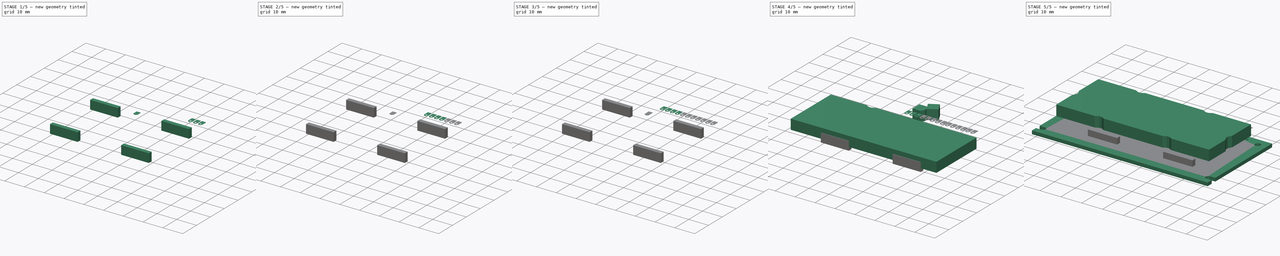
[diagram: build sequence overview — one tinted view per stage of 5, left to right]
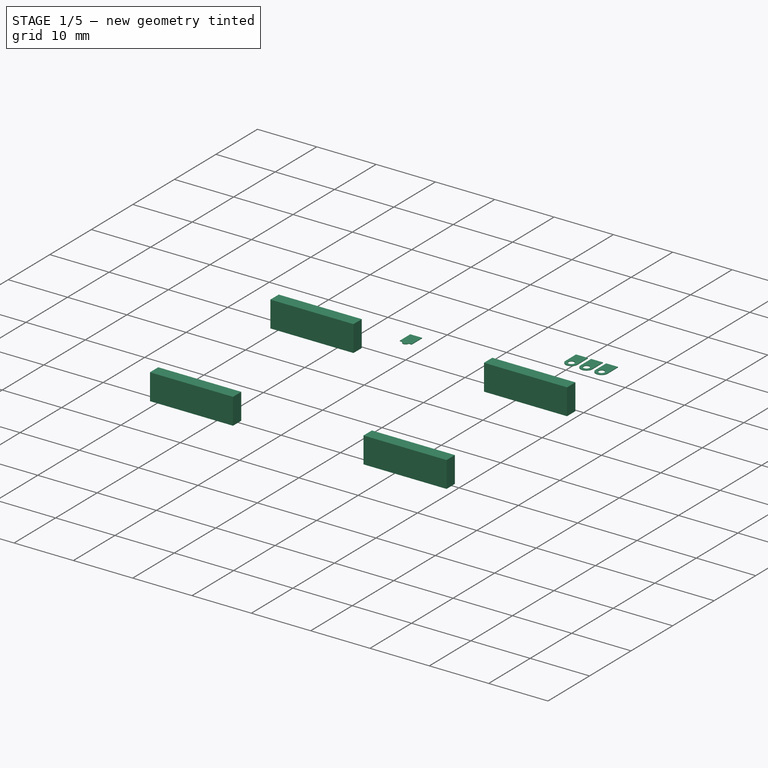
[diagram: stage 1 of 5 — iso view after this stage's code; geometry added in this stage tinted green]
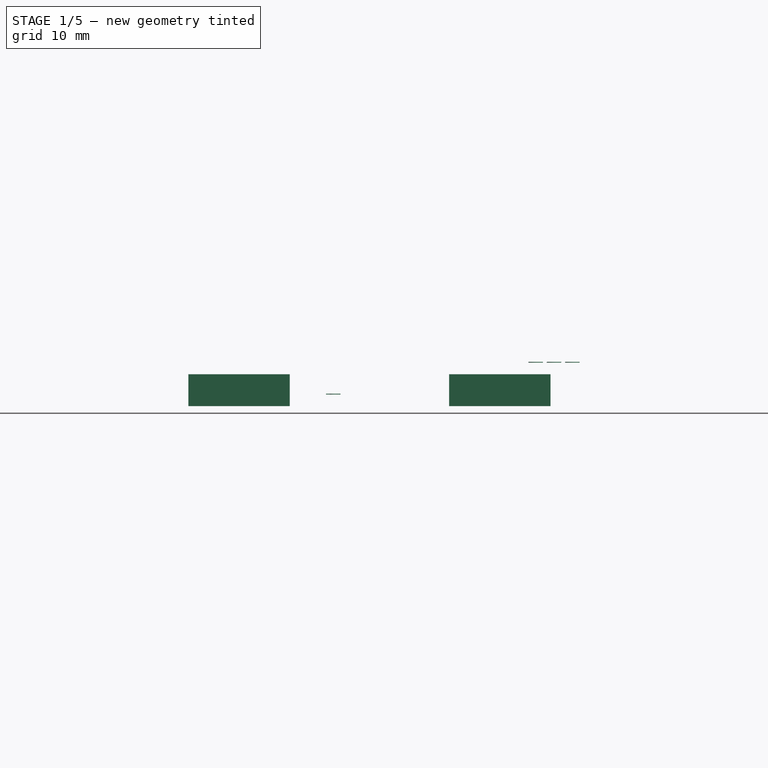
[diagram: stage 1 of 5 — front view after this stage's code; geometry added in this stage tinted green]
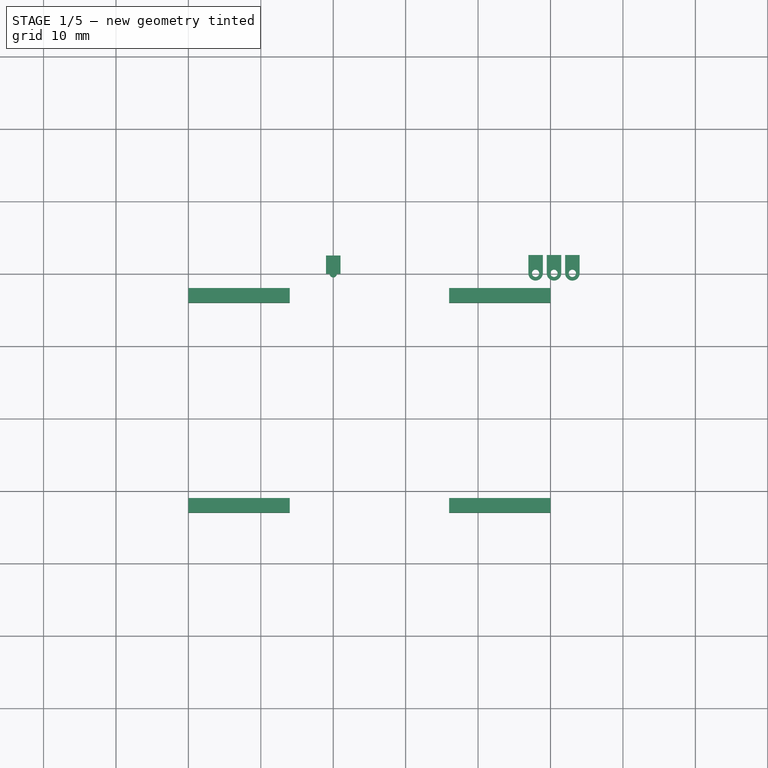
[diagram: stage 1 of 5 — top view after this stage's code; geometry added in this stage tinted green]
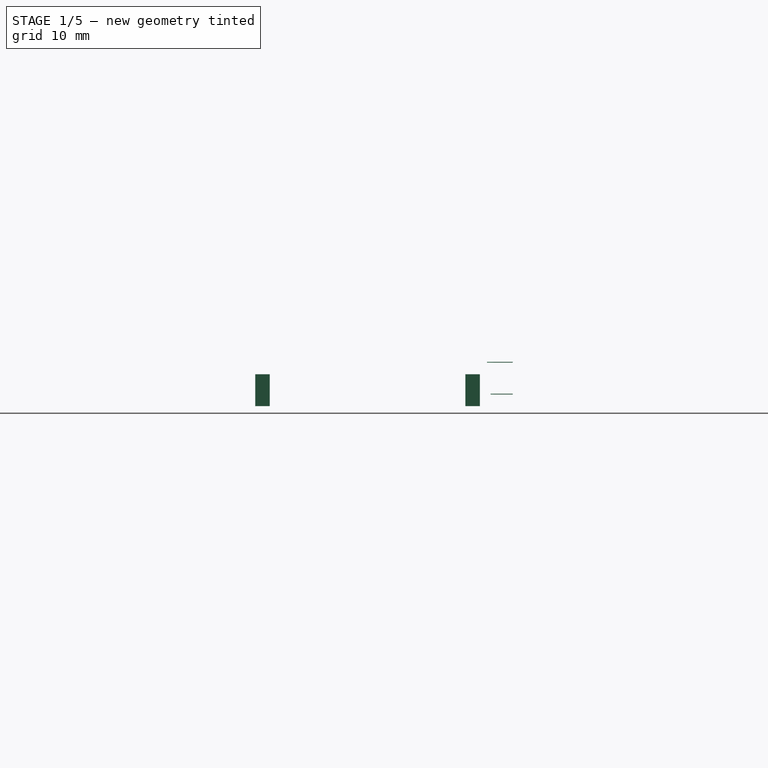
[diagram: stage 1 of 5 — right view after this stage's code; geometry added in this stage tinted green]
FCSTD DOCUMENT  (FreeCAD 0.17R11223 (Git))
Label: LM16255_6
License: All rights reserved
LicenseURL: http://en.wikipedia.org/wiki/All_rights_reserved
objects: Part::Cut×47, Part::Cylinder×42, Part::Box×39, Part::MultiFuse×14, Sketcher::SketchObject×1, PartDesign::Pad×1, PartDesign::Body×1
note: 146 computed .brp shape members not serialized (recipe doc carries the construction recipe); baked Part::Feature solids carry a one-line shape summary decoded from their .brp

FEATURE [Part::Cylinder] Cylinder031
  Angle = 360
  AttacherType = Attacher::AttachEngine3D
  Height = 0.1
  Placement = pos=(0,0,1.6) rot=(0,0,1;0rad)
  Radius = 0.5
FEATURE [Part::Box] Box031  label="Kub028"
  AttacherType = Attacher::AttachEngine3D
  Height = 0.1
  Length = 2
  Placement = pos=(-1,0,1.6) rot=(0,0,1;0rad)
  Width = 2.54
FEATURE [Part::Cylinder] Cylinder032
  Angle = 360
  AttacherType = Attacher::AttachEngine3D
  Height = 0.1
  Placement = pos=(0,0,1.6) rot=(0,0,1;0rad)
  Radius = 0.5
FEATURE [Part::Cut] Cut040
  Base = -> Box031
  Tool = -> Cylinder032
FEATURE [Part::Cylinder] Cylinder033
  Angle = 360
  AttacherType = Attacher::AttachEngine3D
  Height = 0.1
  Placement = pos=(0,0,1.6) rot=(0,0,1;0rad)
  Radius = 1
FEATURE [Part::Cylinder] Cylinder034
  Angle = 360
  AttacherType = Attacher::AttachEngine3D
  Height = 0.1
  Placement = pos=(0,0,1.6) rot=(0,0,1;0rad)
  Radius = 0.5
FEATURE [Part::Cut] Cut041
  Base = -> Cylinder033
  Tool = -> Cylinder034
FEATURE [Part::Box] Box032  label="Kub029"
  AttacherType = Attacher::AttachEngine3D
  Height = 0.1
  Length = 2
  Placement = pos=(-1,0,1.6) rot=(0,0,1;0rad)
  Width = 2.54
FEATURE [Part::Cylinder] Cylinder035
  Angle = 360
  AttacherType = Attacher::AttachEngine3D
  Height = 0.1
  Placement = pos=(0,0,1.6) rot=(0,0,1;0rad)
  Radius = 0.5
FEATURE [Part::Cut] Cut042
  Base = -> Box032
  Tool = -> Cylinder035
FEATURE [Part::MultiFuse] Fusion011  label="Pad 012"
  Placement = pos=(27.94,0,4.4) rot=(0,0,1;0rad)
  Shapes = -> [Cut041,Cut042]
FEATURE [Part::Cylinder] Cylinder036
  Angle = 360
  AttacherType = Attacher::AttachEngine3D
  Height = 0.1
  Placement = pos=(0,0,1.6) rot=(0,0,1;0rad)
  Radius = 1
FEATURE [Part::Cylinder] Cylinder037
  Angle = 360
  AttacherType = Attacher::AttachEngine3D
  Height = 0.1
  Placement = pos=(0,0,1.6) rot=(0,0,1;0rad)
  Radius = 0.5
FEATURE [Part::Cut] Cut043
  Base = -> Cylinder036
  Tool = -> Cylinder037
FEATURE [Part::Box] Box033  label="Kub030"
  AttacherType = Attacher::AttachEngine3D
  Height = 0.1
  Length = 2
  Placement = pos=(-1,0,1.6) rot=(0,0,1;0rad)
  Width = 2.54
FEATURE [Part::Cylinder] Cylinder038
  Angle = 360
  AttacherType = Attacher::AttachEngine3D
  Height = 0.1
  Placement = pos=(0,0,1.6) rot=(0,0,1;0rad)
  Radius = 0.5
FEATURE [Part::Cut] Cut044
  Base = -> Box033
  Tool = -> Cylinder038
FEATURE [Part::MultiFuse] Fusion012  label="Pad 013"
  Placement = pos=(30.48,0,4.4) rot=(0,0,1;0rad)
  Shapes = -> [Cut043,Cut044]
FEATURE [Part::Cylinder] Cylinder039
  Angle = 360
  AttacherType = Attacher::AttachEngine3D
  Height = 0.1
  Placement = pos=(0,0,1.6) rot=(0,0,1;0rad)
  Radius = 1
FEATURE [Part::Cylinder] Cylinder040
  Angle = 360
  AttacherType = Attacher::AttachEngine3D
  Height = 0.1
  Placement = pos=(0,0,1.6) rot=(0,0,1;0rad)
  Radius = 0.5
FEATURE [Part::Cut] Cut045
  Base = -> Cylinder039
  Tool = -> Cylinder040
FEATURE [Part::Box] Box034  label="Kub031"
  AttacherType = Attacher::AttachEngine3D
  Height = 0.1
  Length = 2
  Placement = pos=(-1,0,1.6) rot=(0,0,1;0rad)
  Width = 2.54
FEATURE [Part::Cylinder] Cylinder041
  Angle = 360
  AttacherType = Attacher::AttachEngine3D
  Height = 0.1
  Placement = pos=(0,0,1.6) rot=(0,0,1;0rad)
  Radius = 0.5
FEATURE [Part::Cut] Cut046
  Base = -> Box034
  Tool = -> Cylinder041
FEATURE [Part::MultiFuse] Fusion013  label="Pad 014"
  Placement = pos=(33.02,0,4.4) rot=(0,0,1;0rad)
  Shapes = -> [Cut045,Cut046]
FEATURE [Part::Box] Box035  label="Kub032"
  AttacherType = Attacher::AttachEngine3D
  Height = 4.4
  Length = 14
  Placement = pos=(-20,-33,0) rot=(0,0,1;0rad)
  Width = 2
FEATURE [Part::Box] Box036  label="Kub033"
  AttacherType = Attacher::AttachEngine3D
  Height = 4.4
  Length = 14
  Placement = pos=(-20,-4,0) rot=(0,0,1;0rad)
  Width = 2
FEATURE [Part::Box] Box037  label="Kub034"
  AttacherType = Attacher::AttachEngine3D
  Height = 4.4
  Length = 14
  Placement = pos=(16,-4,0) rot=(0,0,1;0rad)
  Width = 2
FEATURE [Part::Box] Box038  label="Kub035"
  AttacherType = Attacher::AttachEngine3D
  Height = 4.4
  Length = 14
  Placement = pos=(16,-33,0) rot=(0,0,1;0rad)
  Width = 2
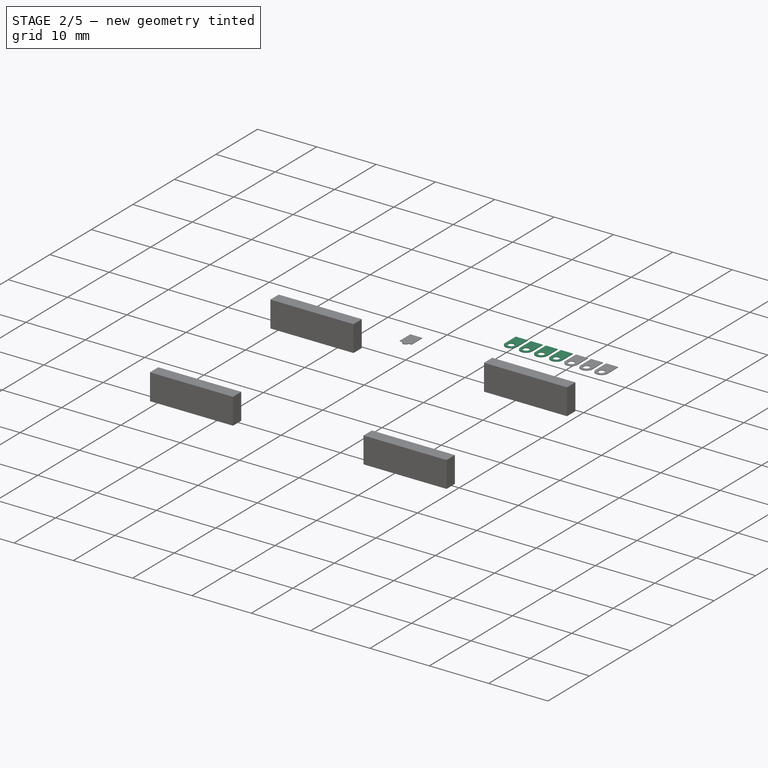
[diagram: stage 2 of 5 — iso view after this stage's code; geometry added in this stage tinted green]
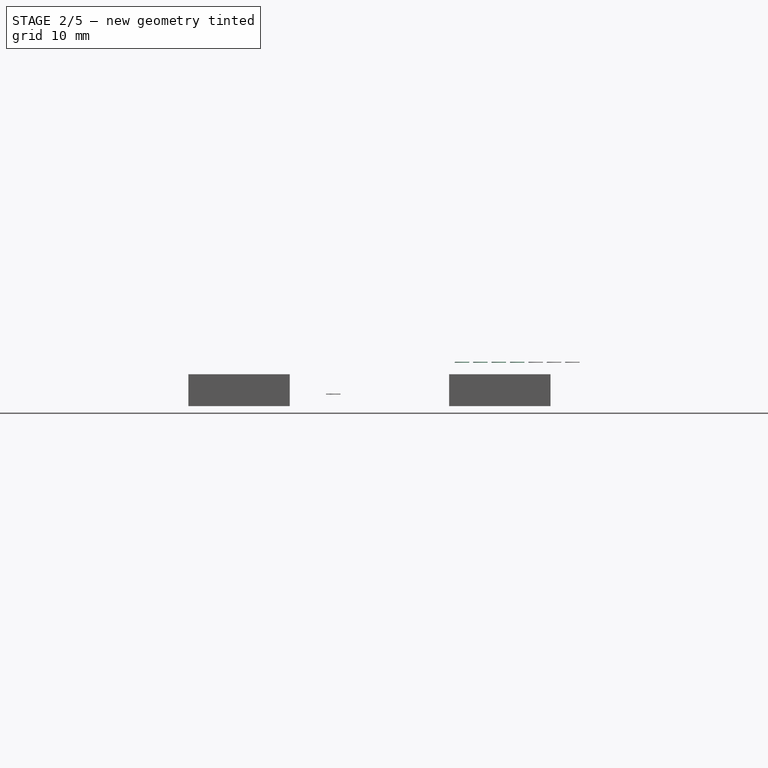
[diagram: stage 2 of 5 — front view after this stage's code; geometry added in this stage tinted green]
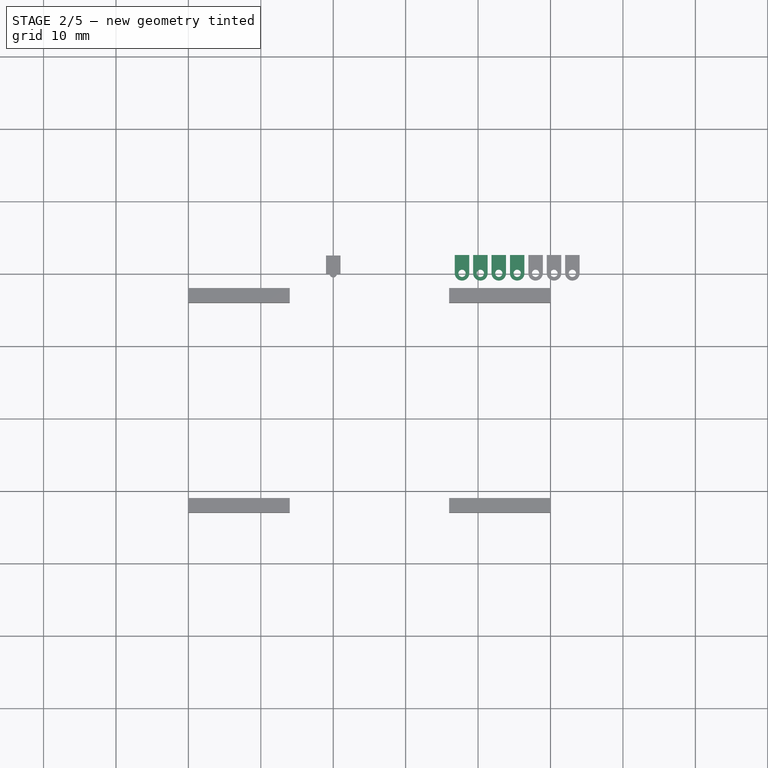
[diagram: stage 2 of 5 — top view after this stage's code; geometry added in this stage tinted green]
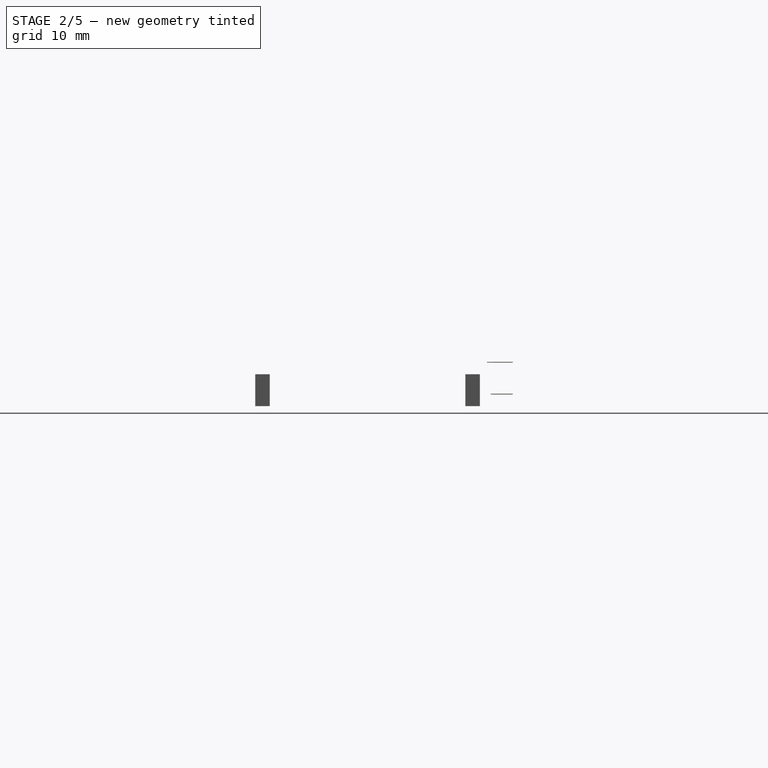
[diagram: stage 2 of 5 — right view after this stage's code; geometry added in this stage tinted green]
FEATURE [Part::Cylinder] Cylinder019
  Angle = 360
  AttacherType = Attacher::AttachEngine3D
  Height = 0.1
  Placement = pos=(0,0,1.6) rot=(0,0,1;0rad)
  Radius = 0.5
FEATURE [Part::Box] Box027  label="Kub024"
  AttacherType = Attacher::AttachEngine3D
  Height = 0.1
  Length = 2
  Placement = pos=(-1,0,1.6) rot=(0,0,1;0rad)
  Width = 2.54
FEATURE [Part::Cylinder] Cylinder020
  Angle = 360
  AttacherType = Attacher::AttachEngine3D
  Height = 0.1
  Placement = pos=(0,0,1.6) rot=(0,0,1;0rad)
  Radius = 0.5
FEATURE [Part::Cut] Cut032
  Base = -> Box027
  Tool = -> Cylinder020
FEATURE [Part::Cylinder] Cylinder021
  Angle = 360
  AttacherType = Attacher::AttachEngine3D
  Height = 0.1
  Placement = pos=(0,0,1.6) rot=(0,0,1;0rad)
  Radius = 1
FEATURE [Part::Cylinder] Cylinder022
  Angle = 360
  AttacherType = Attacher::AttachEngine3D
  Height = 0.1
  Placement = pos=(0,0,1.6) rot=(0,0,1;0rad)
  Radius = 0.5
FEATURE [Part::Cut] Cut033
  Base = -> Cylinder021
  Tool = -> Cylinder022
FEATURE [Part::Box] Box028  label="Kub025"
  AttacherType = Attacher::AttachEngine3D
  Height = 0.1
  Length = 2
  Placement = pos=(-1,0,1.6) rot=(0,0,1;0rad)
  Width = 2.54
FEATURE [Part::Cylinder] Cylinder023
  Angle = 360
  AttacherType = Attacher::AttachEngine3D
  Height = 0.1
  Placement = pos=(0,0,1.6) rot=(0,0,1;0rad)
  Radius = 0.5
FEATURE [Part::Cut] Cut034
  Base = -> Box028
  Tool = -> Cylinder023
FEATURE [Part::MultiFuse] Fusion007  label="Pad 008"
  Placement = pos=(17.78,0,4.4) rot=(0,0,1;0rad)
  Shapes = -> [Cut033,Cut034]
FEATURE [Part::Cylinder] Cylinder024
  Angle = 360
  AttacherType = Attacher::AttachEngine3D
  Height = 0.1
  Placement = pos=(0,0,1.6) rot=(0,0,1;0rad)
  Radius = 1
FEATURE [Part::Cylinder] Cylinder025
  Angle = 360
  AttacherType = Attacher::AttachEngine3D
  Height = 0.1
  Placement = pos=(0,0,1.6) rot=(0,0,1;0rad)
  Radius = 0.5
FEATURE [Part::Cut] Cut035
  Base = -> Cylinder024
  Tool = -> Cylinder025
FEATURE [Part::Box] Box029  label="Kub026"
  AttacherType = Attacher::AttachEngine3D
  Height = 0.1
  Length = 2
  Placement = pos=(-1,0,1.6) rot=(0,0,1;0rad)
  Width = 2.54
FEATURE [Part::Cylinder] Cylinder026
  Angle = 360
  AttacherType = Attacher::AttachEngine3D
  Height = 0.1
  Placement = pos=(0,0,1.6) rot=(0,0,1;0rad)
  Radius = 0.5
FEATURE [Part::Cut] Cut036
  Base = -> Box029
  Tool = -> Cylinder026
FEATURE [Part::MultiFuse] Fusion008  label="Pad 009"
  Placement = pos=(20.32,0,4.4) rot=(0,0,1;0rad)
  Shapes = -> [Cut035,Cut036]
FEATURE [Part::Cylinder] Cylinder027
  Angle = 360
  AttacherType = Attacher::AttachEngine3D
  Height = 0.1
  Placement = pos=(0,0,1.6) rot=(0,0,1;0rad)
  Radius = 1
FEATURE [Part::Cylinder] Cylinder028
  Angle = 360
  AttacherType = Attacher::AttachEngine3D
  Height = 0.1
  Placement = pos=(0,0,1.6) rot=(0,0,1;0rad)
  Radius = 0.5
FEATURE [Part::Cut] Cut037
  Base = -> Cylinder027
  Tool = -> Cylinder028
FEATURE [Part::Box] Box030  label="Kub027"
  AttacherType = Attacher::AttachEngine3D
  Height = 0.1
  Length = 2
  Placement = pos=(-1,0,1.6) rot=(0,0,1;0rad)
  Width = 2.54
FEATURE [Part::Cylinder] Cylinder029
  Angle = 360
  AttacherType = Attacher::AttachEngine3D
  Height = 0.1
  Placement = pos=(0,0,1.6) rot=(0,0,1;0rad)
  Radius = 0.5
FEATURE [Part::Cut] Cut038
  Base = -> Box030
  Tool = -> Cylinder029
FEATURE [Part::MultiFuse] Fusion009  label="Pad 010"
  Placement = pos=(22.86,0,4.4) rot=(0,0,1;0rad)
  Shapes = -> [Cut037,Cut038]
FEATURE [Part::Cylinder] Cylinder030
  Angle = 360
  AttacherType = Attacher::AttachEngine3D
  Height = 0.1
  Placement = pos=(0,0,1.6) rot=(0,0,1;0rad)
  Radius = 1
FEATURE [Part::Cut] Cut039
  Base = -> Cylinder030
  Tool = -> Cylinder031
FEATURE [Part::MultiFuse] Fusion010  label="Pad 011"
  Placement = pos=(25.4,0,4.4) rot=(0,0,1;0rad)
  Shapes = -> [Cut039,Cut040]
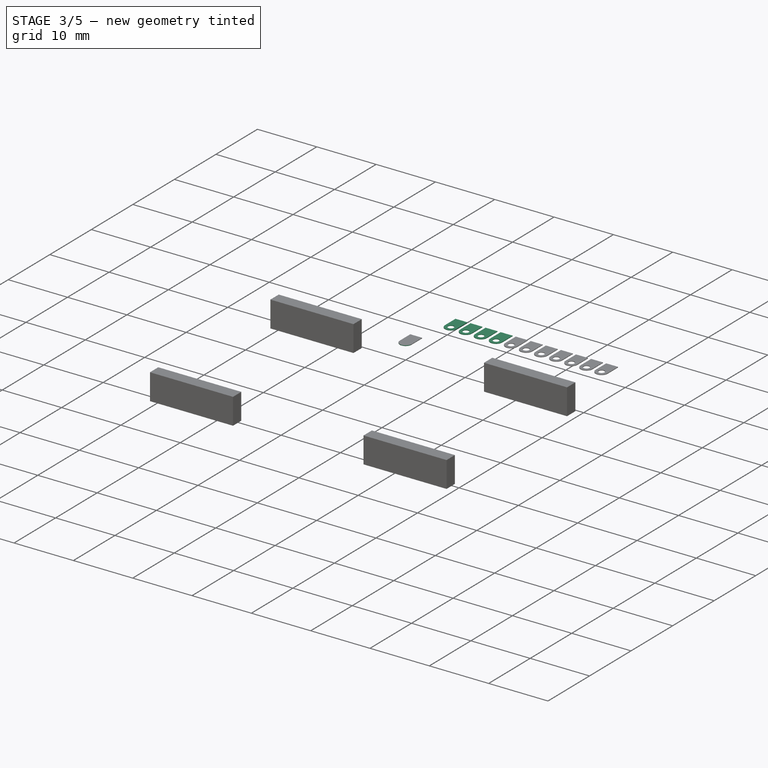
[diagram: stage 3 of 5 — iso view after this stage's code; geometry added in this stage tinted green]
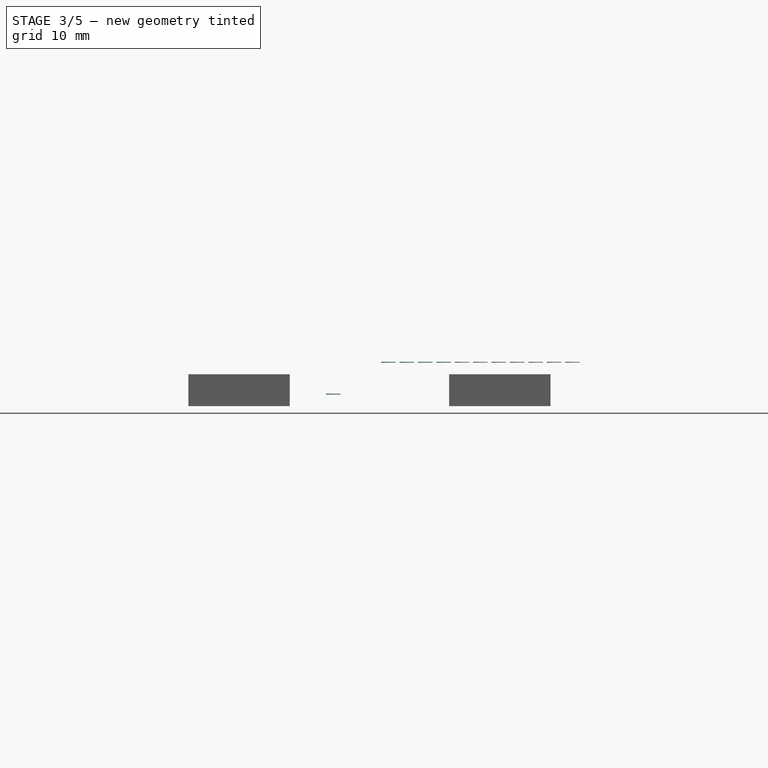
[diagram: stage 3 of 5 — front view after this stage's code; geometry added in this stage tinted green]
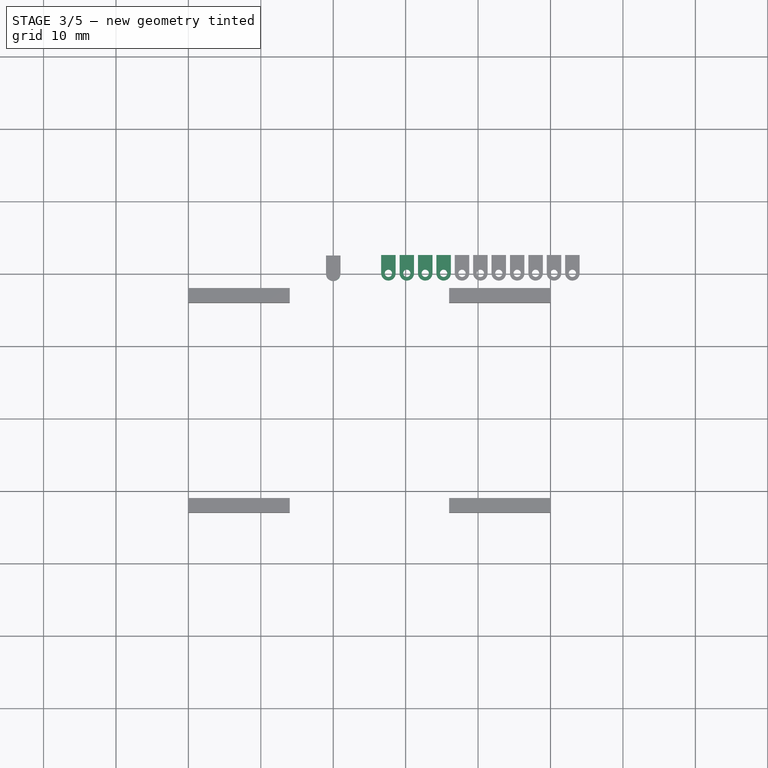
[diagram: stage 3 of 5 — top view after this stage's code; geometry added in this stage tinted green]
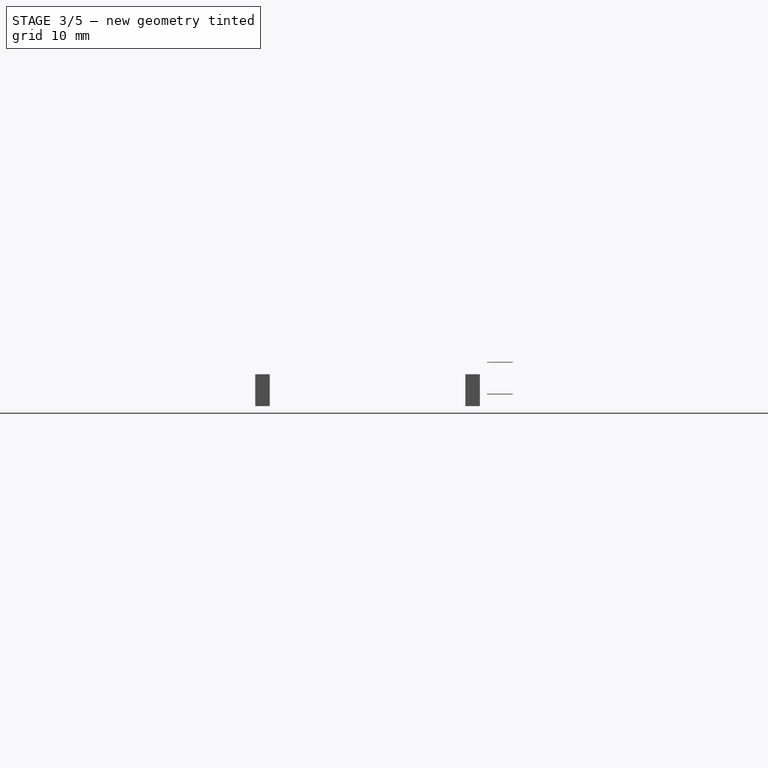
[diagram: stage 3 of 5 — right view after this stage's code; geometry added in this stage tinted green]
FEATURE [Part::Cylinder] Cylinder006
  Angle = 360
  AttacherType = Attacher::AttachEngine3D
  Height = 0.1
  Placement = pos=(0,0,1.6) rot=(0,0,1;0rad)
  Radius = 1
FEATURE [Part::Cylinder] Cylinder007
  Angle = 360
  AttacherType = Attacher::AttachEngine3D
  Height = 0.1
  Placement = pos=(0,0,1.6) rot=(0,0,1;0rad)
  Radius = 0.5
FEATURE [Part::Box] Box023  label="Kub020"
  AttacherType = Attacher::AttachEngine3D
  Height = 0.1
  Length = 2
  Placement = pos=(-1,0,1.6) rot=(0,0,1;0rad)
  Width = 2.54
FEATURE [Part::Cylinder] Cylinder008
  Angle = 360
  AttacherType = Attacher::AttachEngine3D
  Height = 0.1
  Placement = pos=(0,0,1.6) rot=(0,0,1;0rad)
  Radius = 0.5
FEATURE [Part::Cut] Cut024
  Base = -> Box023
  Tool = -> Cylinder008
FEATURE [Part::Cylinder] Cylinder009
  Angle = 360
  AttacherType = Attacher::AttachEngine3D
  Height = 0.1
  Placement = pos=(0,0,1.6) rot=(0,0,1;0rad)
  Radius = 1
FEATURE [Part::Cylinder] Cylinder010
  Angle = 360
  AttacherType = Attacher::AttachEngine3D
  Height = 0.1
  Placement = pos=(0,0,1.6) rot=(0,0,1;0rad)
  Radius = 0.5
FEATURE [Part::Cut] Cut025
  Base = -> Cylinder009
  Tool = -> Cylinder010
FEATURE [Part::Box] Box024  label="Kub021"
  AttacherType = Attacher::AttachEngine3D
  Height = 0.1
  Length = 2
  Placement = pos=(-1,0,1.6) rot=(0,0,1;0rad)
  Width = 2.54
FEATURE [Part::Cylinder] Cylinder011
  Angle = 360
  AttacherType = Attacher::AttachEngine3D
  Height = 0.1
  Placement = pos=(0,0,1.6) rot=(0,0,1;0rad)
  Radius = 0.5
FEATURE [Part::Cut] Cut026
  Base = -> Box024
  Tool = -> Cylinder011
FEATURE [Part::MultiFuse] Fusion003  label="Pad 004"
  Placement = pos=(7.62,0,4.4) rot=(0,0,1;0rad)
  Shapes = -> [Cut025,Cut026]
FEATURE [Part::Cylinder] Cylinder012
  Angle = 360
  AttacherType = Attacher::AttachEngine3D
  Height = 0.1
  Placement = pos=(0,0,1.6) rot=(0,0,1;0rad)
  Radius = 1
FEATURE [Part::Cylinder] Cylinder013
  Angle = 360
  AttacherType = Attacher::AttachEngine3D
  Height = 0.1
  Placement = pos=(0,0,1.6) rot=(0,0,1;0rad)
  Radius = 0.5
FEATURE [Part::Cut] Cut027
  Base = -> Cylinder012
  Tool = -> Cylinder013
FEATURE [Part::Box] Box025  label="Kub022"
  AttacherType = Attacher::AttachEngine3D
  Height = 0.1
  Length = 2
  Placement = pos=(-1,0,1.6) rot=(0,0,1;0rad)
  Width = 2.54
FEATURE [Part::Cylinder] Cylinder014
  Angle = 360
  AttacherType = Attacher::AttachEngine3D
  Height = 0.1
  Placement = pos=(0,0,1.6) rot=(0,0,1;0rad)
  Radius = 0.5
FEATURE [Part::Cut] Cut028
  Base = -> Box025
  Tool = -> Cylinder014
FEATURE [Part::MultiFuse] Fusion004  label="Pad 005"
  Placement = pos=(10.16,0,4.4) rot=(0,0,1;0rad)
  Shapes = -> [Cut027,Cut028]
FEATURE [Part::Cylinder] Cylinder015
  Angle = 360
  AttacherType = Attacher::AttachEngine3D
  Height = 0.1
  Placement = pos=(0,0,1.6) rot=(0,0,1;0rad)
  Radius = 1
FEATURE [Part::Cylinder] Cylinder016
  Angle = 360
  AttacherType = Attacher::AttachEngine3D
  Height = 0.1
  Placement = pos=(0,0,1.6) rot=(0,0,1;0rad)
  Radius = 0.5
FEATURE [Part::Cut] Cut029
  Base = -> Cylinder015
  Tool = -> Cylinder016
FEATURE [Part::Box] Box026  label="Kub023"
  AttacherType = Attacher::AttachEngine3D
  Height = 0.1
  Length = 2
  Placement = pos=(-1,0,1.6) rot=(0,0,1;0rad)
  Width = 2.54
FEATURE [Part::Cylinder] Cylinder017
  Angle = 360
  AttacherType = Attacher::AttachEngine3D
  Height = 0.1
  Placement = pos=(0,0,1.6) rot=(0,0,1;0rad)
  Radius = 0.5
FEATURE [Part::Cut] Cut030
  Base = -> Box026
  Tool = -> Cylinder017
FEATURE [Part::MultiFuse] Fusion005  label="Pad 006"
  Placement = pos=(12.7,0,4.4) rot=(0,0,1;0rad)
  Shapes = -> [Cut029,Cut030]
FEATURE [Part::Cylinder] Cylinder018
  Angle = 360
  AttacherType = Attacher::AttachEngine3D
  Height = 0.1
  Placement = pos=(0,0,1.6) rot=(0,0,1;0rad)
  Radius = 1
FEATURE [Part::Cut] Cut031
  Base = -> Cylinder018
  Tool = -> Cylinder019
FEATURE [Part::MultiFuse] Fusion006  label="Pad 007"
  Placement = pos=(15.24,0,4.4) rot=(0,0,1;0rad)
  Shapes = -> [Cut031,Cut032]
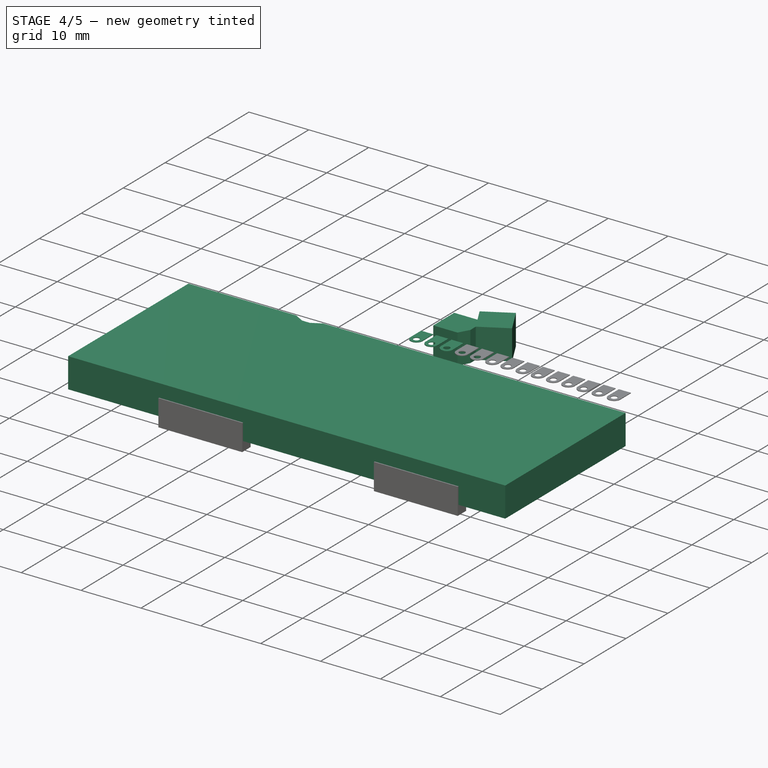
[diagram: stage 4 of 5 — iso view after this stage's code; geometry added in this stage tinted green]
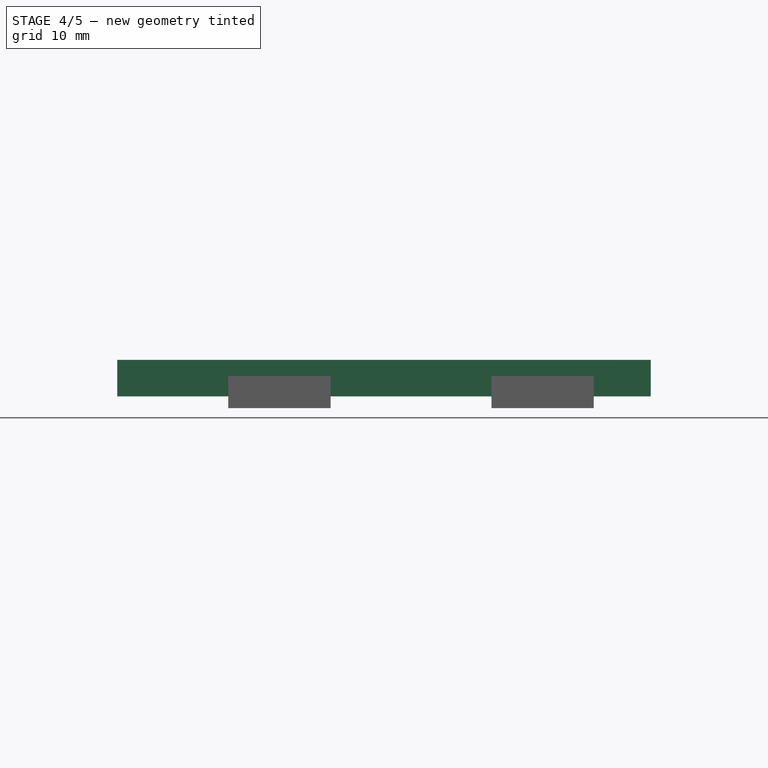
[diagram: stage 4 of 5 — front view after this stage's code; geometry added in this stage tinted green]
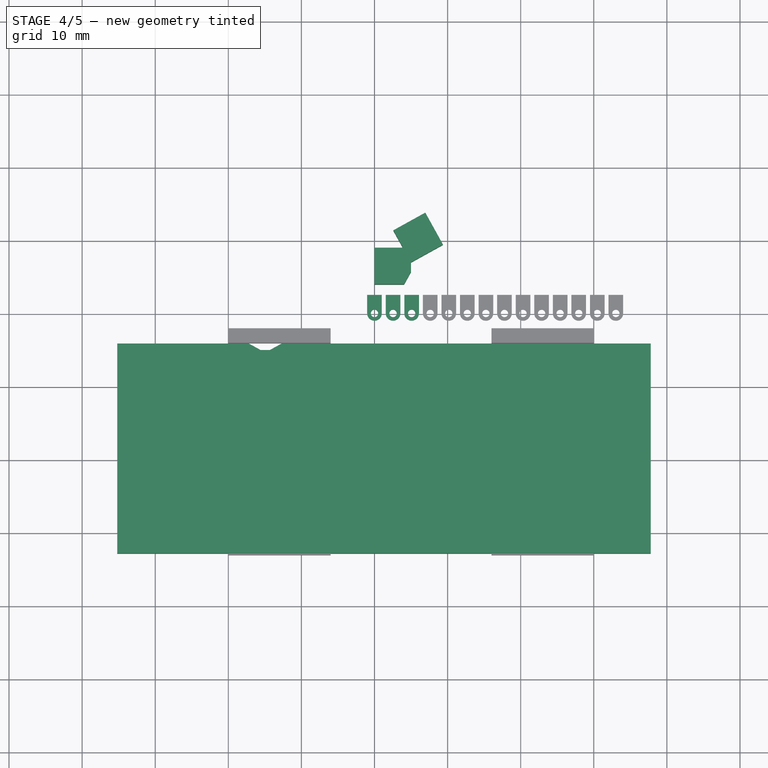
[diagram: stage 4 of 5 — top view after this stage's code; geometry added in this stage tinted green]
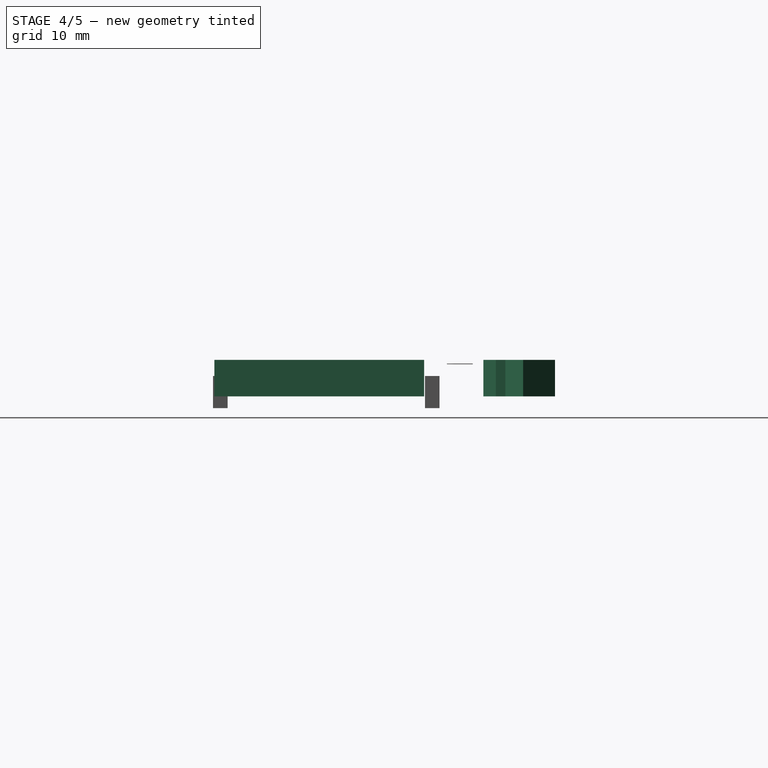
[diagram: stage 4 of 5 — right view after this stage's code; geometry added in this stage tinted green]
FEATURE [PartDesign::Body] Body
  Group = -> [Sketch,Pad]
  Origin = -> BodyOrigin
  Placement = pos=(0,0,4.4) rot=(0,0,1;0rad)
  Tip = -> Pad
FEATURE [Part::Box] Box  label="Display frame"
  AttacherType = Attacher::AttachEngine3D
  Height = 5
  Length = 73
  Placement = pos=(-35.2,-32.81,1.6) rot=(0,0,1;0rad)
  Width = 28.7
FEATURE [Part::Box] Box010  label="Kub010"
  AttacherType = Attacher::AttachEngine3D
  Height = 5
  Length = 5
  Placement = pos=(0,4,1.6) rot=(0,0,1;0rad)
  Width = 5
FEATURE [Part::Box] Box011  label="Kub011"
  AttacherType = Attacher::AttachEngine3D
  Height = 5
  Length = 5
  Placement = pos=(7,-1,1.6) rot=(0,0,1;1.06465rad)
  Width = 5
FEATURE [Part::Box] Box012  label="Kub012"
  AttacherType = Attacher::AttachEngine3D
  Height = 5
  Length = 5
  Placement = pos=(5,7,1.6) rot=(0,0,1;0.506145rad)
  Width = 5
FEATURE [Part::Cut] Cut006
  Base = -> Box010
  Tool = -> Box011
FEATURE [Part::Box] Box013  label="Kub013"
  AttacherType = Attacher::AttachEngine3D
  Height = 5
  Length = 5
  Placement = pos=(0,4,1.6) rot=(0,0,1;0rad)
  Width = 5
FEATURE [Part::Box] Box014  label="Kub014"
  AttacherType = Attacher::AttachEngine3D
  Height = 5
  Length = 5
  Placement = pos=(7,-1,1.6) rot=(0,0,1;1.06465rad)
  Width = 5
FEATURE [Part::Box] Box015  label="Kub015"
  AttacherType = Attacher::AttachEngine3D
  Height = 5
  Length = 5
  Placement = pos=(5,7,1.6) rot=(0,0,1;0.506145rad)
  Width = 5
FEATURE [Part::Cut] Cut008
  Base = -> Box013
  Tool = -> Box014
FEATURE [Part::Cut] Cut009
  Base = -> Cut008
  Placement = pos=(-21.3,0,0) rot=(0,0,-1;1.5708rad)
  Tool = -> Box015
FEATURE [Part::Cut] Cut012
  Base = -> Box
  Tool = -> Cut009
FEATURE [Part::Box] Box019  label="LED active area cut out"
  AttacherType = Attacher::AttachEngine3D
  Height = 2
  Length = 61
  Placement = pos=(-29.02,-26.25,4.6) rot=(0,0,1;0rad)
  Width = 15.8
FEATURE [Part::Cylinder] Cylinder
  Angle = 360
  AttacherType = Attacher::AttachEngine3D
  Height = 0.1
  Placement = pos=(0,0,1.6) rot=(0,0,1;0rad)
  Radius = 1
FEATURE [Part::Cylinder] Cylinder001
  Angle = 360
  AttacherType = Attacher::AttachEngine3D
  Height = 0.1
  Placement = pos=(0,0,1.6) rot=(0,0,1;0rad)
  Radius = 0.5
FEATURE [Part::Cut] Cut019
  Base = -> Cylinder
  Tool = -> Cylinder001
FEATURE [Part::Box] Box021  label="Kub"
  AttacherType = Attacher::AttachEngine3D
  Height = 0.1
  Length = 2
  Placement = pos=(-1,0,1.6) rot=(0,0,1;0rad)
  Width = 2.54
FEATURE [Part::Cylinder] Cylinder002
  Angle = 360
  AttacherType = Attacher::AttachEngine3D
  Height = 0.1
  Placement = pos=(0,0,1.6) rot=(0,0,1;0rad)
  Radius = 0.5
FEATURE [Part::Cut] Cut020
  Base = -> Box021
  Tool = -> Cylinder002
FEATURE [Part::MultiFuse] Fusion  label="Pad 001"
  Placement = pos=(0,0,4.4) rot=(0,0,1;0rad)
  Shapes = -> [Cut019,Cut020]
FEATURE [Part::Cylinder] Cylinder003
  Angle = 360
  AttacherType = Attacher::AttachEngine3D
  Height = 0.1
  Placement = pos=(0,0,1.6) rot=(0,0,1;0rad)
  Radius = 1
FEATURE [Part::Cylinder] Cylinder004
  Angle = 360
  AttacherType = Attacher::AttachEngine3D
  Height = 0.1
  Placement = pos=(0,0,1.6) rot=(0,0,1;0rad)
  Radius = 0.5
FEATURE [Part::Cut] Cut021
  Base = -> Cylinder003
  Tool = -> Cylinder004
FEATURE [Part::Box] Box022  label="Kub019"
  AttacherType = Attacher::AttachEngine3D
  Height = 0.1
  Length = 2
  Placement = pos=(-1,0,1.6) rot=(0,0,1;0rad)
  Width = 2.54
FEATURE [Part::Cylinder] Cylinder005
  Angle = 360
  AttacherType = Attacher::AttachEngine3D
  Height = 0.1
  Placement = pos=(0,0,1.6) rot=(0,0,1;0rad)
  Radius = 0.5
FEATURE [Part::Cut] Cut022
  Base = -> Box022
  Tool = -> Cylinder005
FEATURE [Part::MultiFuse] Fusion001  label="Pad 002"
  Placement = pos=(2.54,0,4.4) rot=(0,0,1;0rad)
  Shapes = -> [Cut021,Cut022]
FEATURE [Part::Cut] Cut023
  Base = -> Cylinder006
  Tool = -> Cylinder007
FEATURE [Part::MultiFuse] Fusion002  label="Pad 003"
  Placement = pos=(5.08,0,4.4) rot=(0,0,1;0rad)
  Shapes = -> [Cut023,Cut024]
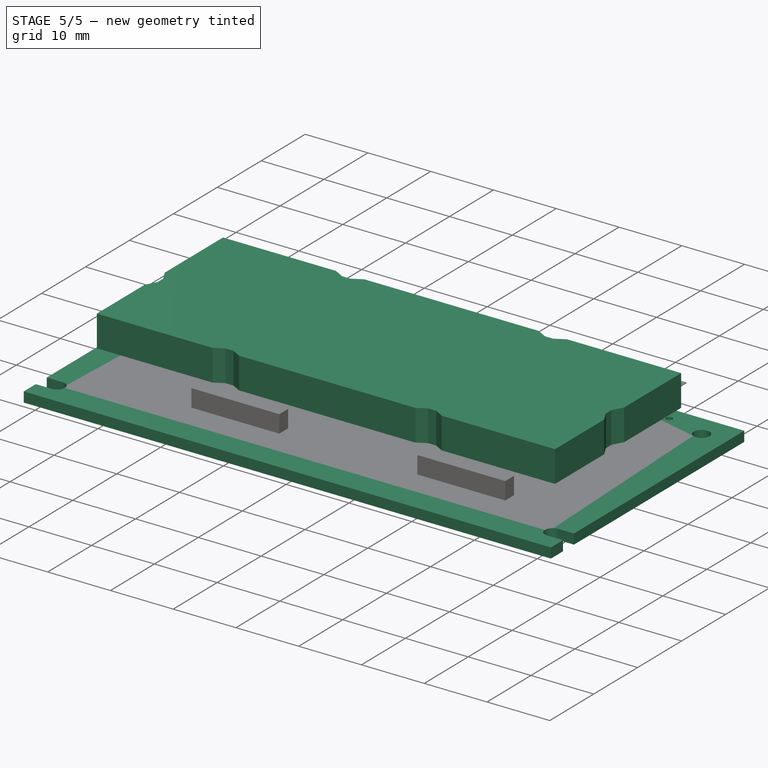
[diagram: stage 5 of 5 — iso view after this stage's code; geometry added in this stage tinted green]
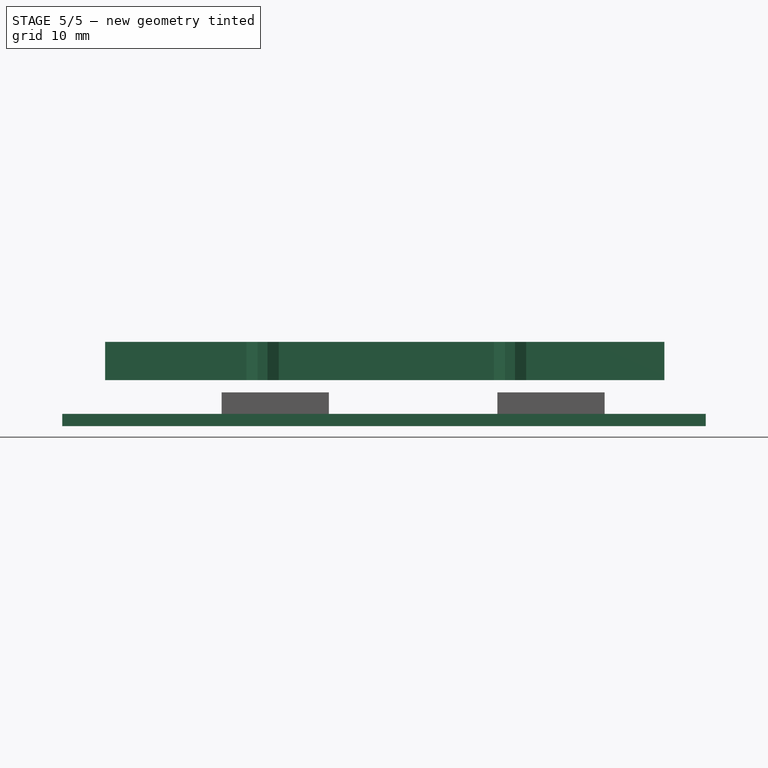
[diagram: stage 5 of 5 — front view after this stage's code; geometry added in this stage tinted green]
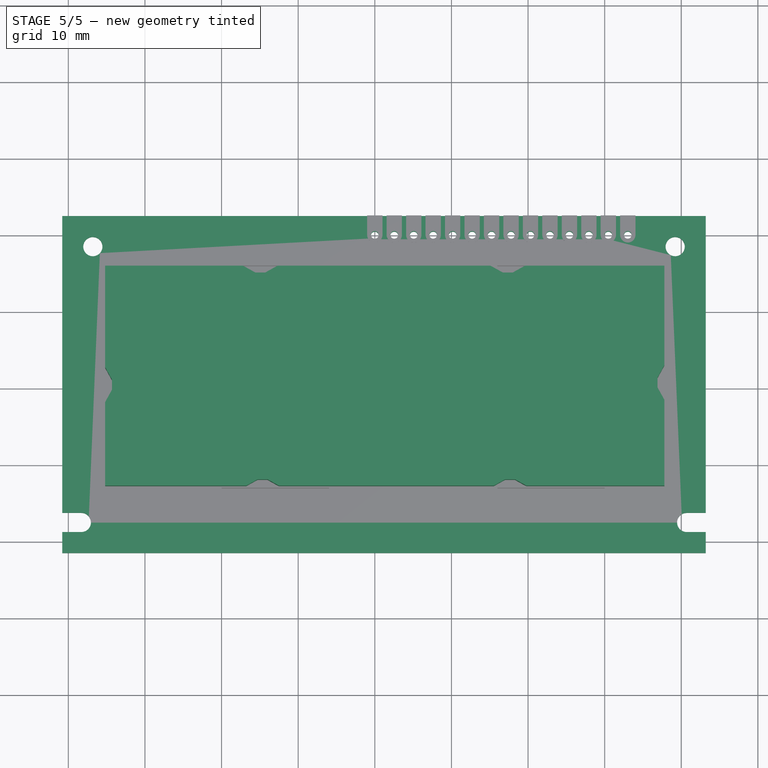
[diagram: stage 5 of 5 — top view after this stage's code; geometry added in this stage tinted green]
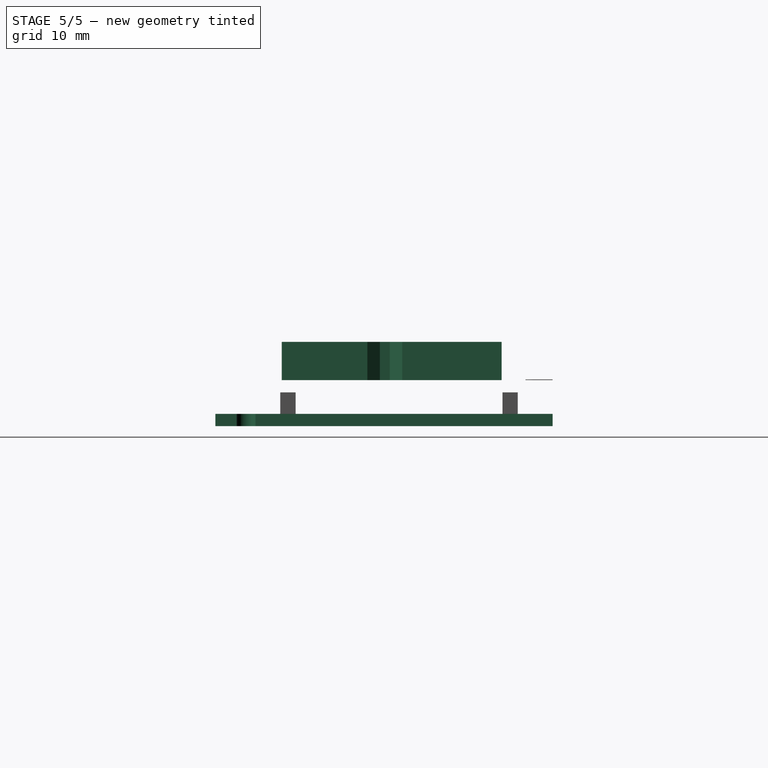
[diagram: stage 5 of 5 — right view after this stage's code; geometry added in this stage tinted green]
FEATURE [Sketcher::SketchObject] Sketch
  MapMode = 5
  Support = -> [XY_Plane]
  sketch-geometry (28):
    g0: LineSegment StartX=-40.8 StartY=2.54 StartZ=0 EndX=43.2 EndY=2.54 EndZ=0
    g1: LineSegment StartX=-40.8 StartY=2.54 StartZ=0 EndX=-40.8 EndY=-36.21 EndZ=0
    g2: LineSegment StartX=43.2 StartY=2.54 StartZ=0 EndX=43.2 EndY=-36.21 EndZ=0
    g3: LineSegment StartX=-40.8 StartY=-36.21 StartZ=0 EndX=-38.3 EndY=-36.21 EndZ=0
    g4: ArcOfCircle CenterX=-38.3 CenterY=-37.46 CenterZ=0 NormalX=0 NormalY=0 NormalZ=1 Radius=1.25 StartAngle=4.71239 EndAngle=7.85398
    g5: LineSegment StartX=-38.3 StartY=-38.71 StartZ=0 EndX=-40.8 EndY=-38.71 EndZ=0
    g6: LineSegment StartX=-40.8 StartY=-38.71 StartZ=0 EndX=-40.8 EndY=-41.46 EndZ=0
    g7: LineSegment StartX=-40.8 StartY=-41.46 StartZ=0 EndX=43.2 EndY=-41.46 EndZ=0
    g8: LineSegment StartX=43.2 StartY=-41.46 StartZ=0 EndX=43.2 EndY=-38.71 EndZ=0
    g9: LineSegment StartX=43.2 StartY=-38.71 StartZ=0 EndX=40.7 EndY=-38.71 EndZ=0
    g10: ArcOfCircle CenterX=40.7 CenterY=-37.46 CenterZ=0 NormalX=0 NormalY=0 NormalZ=1 Radius=1.25 StartAngle=1.5708 EndAngle=4.71239
    g11: LineSegment StartX=40.7 StartY=-36.21 StartZ=0 EndX=43.2 EndY=-36.21 EndZ=0
    g12: Circle CenterX=39.2 CenterY=-1.46 CenterZ=0 NormalX=0 NormalY=0 NormalZ=1 Radius=1.25
    g13: Circle CenterX=-36.8 CenterY=-1.46 CenterZ=0 NormalX=0 NormalY=0 NormalZ=1 Radius=1.25
    g14: Circle CenterX=0 CenterY=0 CenterZ=0 NormalX=0 NormalY=0 NormalZ=1 Radius=0.5
    g15: Circle CenterX=2.54 CenterY=0 CenterZ=0 NormalX=0 NormalY=0 NormalZ=1 Radius=0.5
    g16: Circle CenterX=5.08 CenterY=0 CenterZ=0 NormalX=0 NormalY=0 NormalZ=1 Radius=0.5
    g17: Circle CenterX=7.62 CenterY=0 CenterZ=0 NormalX=0 NormalY=0 NormalZ=1 Radius=0.5
    g18: Circle CenterX=10.16 CenterY=0 CenterZ=0 NormalX=0 NormalY=0 NormalZ=1 Radius=0.5
    g19: Circle CenterX=12.7 CenterY=0 CenterZ=0 NormalX=0 NormalY=0 NormalZ=1 Radius=0.5
    g20: Circle CenterX=15.24 CenterY=0 CenterZ=0 NormalX=0 NormalY=0 NormalZ=1 Radius=0.5
    g21: Circle CenterX=17.78 CenterY=0 CenterZ=0 NormalX=0 NormalY=0 NormalZ=1 Radius=0.5
    g22: Circle CenterX=22.86 CenterY=0 CenterZ=0 NormalX=0 NormalY=0 NormalZ=1 Radius=0.5
    g23: Circle CenterX=25.4 CenterY=0 CenterZ=0 NormalX=0 NormalY=0 NormalZ=1 Radius=0.5
    g24: Circle CenterX=20.32 CenterY=0 CenterZ=0 NormalX=0 NormalY=0 NormalZ=1 Radius=0.5
    g25: Circle CenterX=27.94 CenterY=0 CenterZ=0 NormalX=0 NormalY=0 NormalZ=1 Radius=0.5
    g26: Circle CenterX=30.48 CenterY=0 CenterZ=0 NormalX=0 NormalY=0 NormalZ=1 Radius=0.5
    g27: Circle CenterX=33.02 CenterY=0 CenterZ=0 NormalX=0 NormalY=0 NormalZ=1 Radius=0.5
  constraints (74):
    c: Horizontal(g0)
    c: DistanceX(g0,g0) = 84
    c: DistanceX(g-1,g0) = 43.2
    c: DistanceY(g-1,g0) = 2.54
    c: Coincident(g1,g0)
    c: Vertical(g1)
    c: DistanceY(g1,g0) = 38.75
    c: Coincident(g2,g0)
    c: Vertical(g2)
    c: DistanceY(g2,g0) = 38.75
    c: Coincident(g3,g1)
    c: Horizontal(g3)
    c: DistanceX(g1,g3) = 2.5
    c: Coincident(g4,g3)
    c: DistanceX(g3,g4) = 0
    c: Radius(g4) = 1.25
    c: Coincident(g5,g4)
    c: Horizontal(g5)
    c: DistanceX(g5,g4) = 2.5
    c: DistanceX(g4,g4) = 0
    c: Coincident(g6,g5)
    c: Vertical(g6)
    c: DistanceY(g6,g5) = 2.75
    c: Coincident(g7,g6)
    c: Horizontal(g7)
    c: DistanceX(g6,g7) = 84
    c: Coincident(g8,g7)
    c: Vertical(g8)
    c: DistanceY(g7,g8) = 2.75
    c: Coincident(g9,g8)
    c: Horizontal(g9)
    c: DistanceX(g9,g8) = 2.5
    c: DistanceX(g10,g2) = 2.5
    c: Coincident(g10,g9)
    c: Radius(g10) = 1.25
    c: DistanceX(g9,g10) = 0
    c: Coincident(g11,g10)
    c: Coincident(g11,g2)
    c: Radius(g12) = 1.25
    c: DistanceX(g12,g0) = 4
    c: DistanceY(g12,g0) = 4
    c: Radius(g13) = 1.25
    c: DistanceX(g0,g13) = 4
    c: DistanceY(g13,g0) = 4
    c: Radius(g14) = 0.5
    c: Equal(g14, g15-g27) x13
    c: DistanceX(g26,g27) = 2.54
    c: DistanceX(g25,g26) = 2.54
    c: DistanceX(g23,g25) = 2.54
    c: DistanceX(g22,g23) = 2.54
    c: DistanceX(g24,g22) = 2.54
    c: DistanceX(g21,g24) = 2.54
    c: DistanceX(g20,g21) = 2.54
    c: DistanceX(g19,g20) = 2.54
    c: DistanceX(g18,g19) = 2.54
    c: DistanceX(g17,g18) = 2.54
    c: DistanceX(g16,g17) = 2.54
    c: DistanceX(g15,g16) = 2.54
    c: DistanceX(g14,g15) = 2.54
    c: DistanceY(g15,g14) = 0
    c: DistanceY(g16,g15) = 0
    c: DistanceY(g17,g16) = 0
    c: DistanceY(g18,g17) = 0
    c: DistanceY(g19,g18) = 0
    c: DistanceY(g20,g19) = 0
    c: DistanceY(g21,g20) = 0
    c: DistanceY(g24,g21) = 0
    c: DistanceY(g22,g24) = 0
    c: DistanceY(g23,g22) = 0
    c: DistanceY(g25,g23) = 0
    c: DistanceY(g26,g25) = 0
    c: DistanceY(g27,g26) = 0
    c: DistanceX(g-1,g14) = 0
    c: DistanceY(g14,g-1) = 0
FEATURE [PartDesign::Pad] Pad
  Length = 1.6
  Length2 = 100
  Profile = -> Sketch
  Type = 0
FEATURE [Part::Box] Box001  label="Kub001"
  AttacherType = Attacher::AttachEngine3D
  Height = 5
  Length = 5
  Placement = pos=(0,4,1.6) rot=(0,0,1;0rad)
  Width = 5
FEATURE [Part::Box] Box002  label="Kub002"
  AttacherType = Attacher::AttachEngine3D
  Height = 5
  Length = 5
  Placement = pos=(7,-1,1.6) rot=(0,0,1;1.06465rad)
  Width = 5
FEATURE [Part::Box] Box003  label="Kub003"
  AttacherType = Attacher::AttachEngine3D
  Height = 5
  Length = 5
  Placement = pos=(5,7,1.6) rot=(0,0,1;0.506145rad)
  Width = 5
FEATURE [Part::Cut] Cut
  Base = -> Box001
  Tool = -> Box002
FEATURE [Part::Cut] Cut001
  Base = -> Cut
  Placement = pos=(-39.3,-26,0) rot=(0,0,1;0rad)
  Tool = -> Box003
FEATURE [Part::Box] Box004  label="Kub004"
  AttacherType = Attacher::AttachEngine3D
  Height = 5
  Length = 5
  Placement = pos=(0,4,1.6) rot=(0,0,1;0rad)
  Width = 5
FEATURE [Part::Box] Box005  label="Kub005"
  AttacherType = Attacher::AttachEngine3D
  Height = 5
  Length = 5
  Placement = pos=(7,-1,1.6) rot=(0,0,1;1.06465rad)
  Width = 5
FEATURE [Part::Box] Box006  label="Kub006"
  AttacherType = Attacher::AttachEngine3D
  Height = 5
  Length = 5
  Placement = pos=(5,7,1.6) rot=(0,0,1;0.506145rad)
  Width = 5
FEATURE [Part::Cut] Cut002
  Base = -> Box004
  Tool = -> Box005
FEATURE [Part::Cut] Cut003
  Base = -> Cut002
  Placement = pos=(41.9,-13,0) rot=(0,0,1;3.14159rad)
  Tool = -> Box006
FEATURE [Part::Box] Box007  label="Kub007"
  AttacherType = Attacher::AttachEngine3D
  Height = 5
  Length = 5
  Placement = pos=(0,4,1.6) rot=(0,0,1;0rad)
  Width = 5
FEATURE [Part::Box] Box008  label="Kub008"
  AttacherType = Attacher::AttachEngine3D
  Height = 5
  Length = 5
  Placement = pos=(7,-1,1.6) rot=(0,0,1;1.06465rad)
  Width = 5
FEATURE [Part::Box] Box009  label="Kub009"
  AttacherType = Attacher::AttachEngine3D
  Height = 5
  Length = 5
  Placement = pos=(5,7,1.6) rot=(0,0,1;0.506145rad)
  Width = 5
FEATURE [Part::Cut] Cut004
  Base = -> Box007
  Tool = -> Box008
FEATURE [Part::Cut] Cut005
  Base = -> Cut004
  Placement = pos=(-8.3,-37,0) rot=(0,0,1;1.5708rad)
  Tool = -> Box009
FEATURE [Part::Cut] Cut007
  Base = -> Cut006
  Placement = pos=(11,0,0) rot=(0,0,-1;1.5708rad)
  Tool = -> Box012
FEATURE [Part::Box] Box016  label="Kub016"
  AttacherType = Attacher::AttachEngine3D
  Height = 5
  Length = 5
  Placement = pos=(0,4,1.6) rot=(0,0,1;0rad)
  Width = 5
FEATURE [Part::Box] Box017  label="Kub017"
  AttacherType = Attacher::AttachEngine3D
  Height = 5
  Length = 5
  Placement = pos=(7,-1,1.6) rot=(0,0,1;1.06465rad)
  Width = 5
FEATURE [Part::Box] Box018  label="Kub018"
  AttacherType = Attacher::AttachEngine3D
  Height = 5
  Length = 5
  Placement = pos=(5,7,1.6) rot=(0,0,1;0.506145rad)
  Width = 5
FEATURE [Part::Cut] Cut010
  Base = -> Box016
  Tool = -> Box017
FEATURE [Part::Cut] Cut011
  Base = -> Cut010
  Placement = pos=(24,-37,0) rot=(0,0,1;1.5708rad)
  Tool = -> Box018
FEATURE [Part::Cut] Cut013
  Base = -> Cut012
  Tool = -> Cut007
FEATURE [Part::Cut] Cut014
  Base = -> Cut013
  Tool = -> Cut003
FEATURE [Part::Cut] Cut015
  Base = -> Cut014
  Tool = -> Cut011
FEATURE [Part::Cut] Cut016
  Base = -> Cut015
  Tool = -> Cut005
FEATURE [Part::Cut] Cut017
  Base = -> Cut016
  Tool = -> Cut001
FEATURE [Part::Box] Box020  label="LED active area"
  AttacherType = Attacher::AttachEngine3D
  Height = 2
  Length = 61
  Placement = pos=(-29.02,-26.25,9) rot=(0,0,1;0rad)
  Width = 15.8
FEATURE [Part::Cut] Cut018
  Base = -> Cut017
  Placement = pos=(0,0,4.4) rot=(0,0,1;0rad)
  Tool = -> Box019
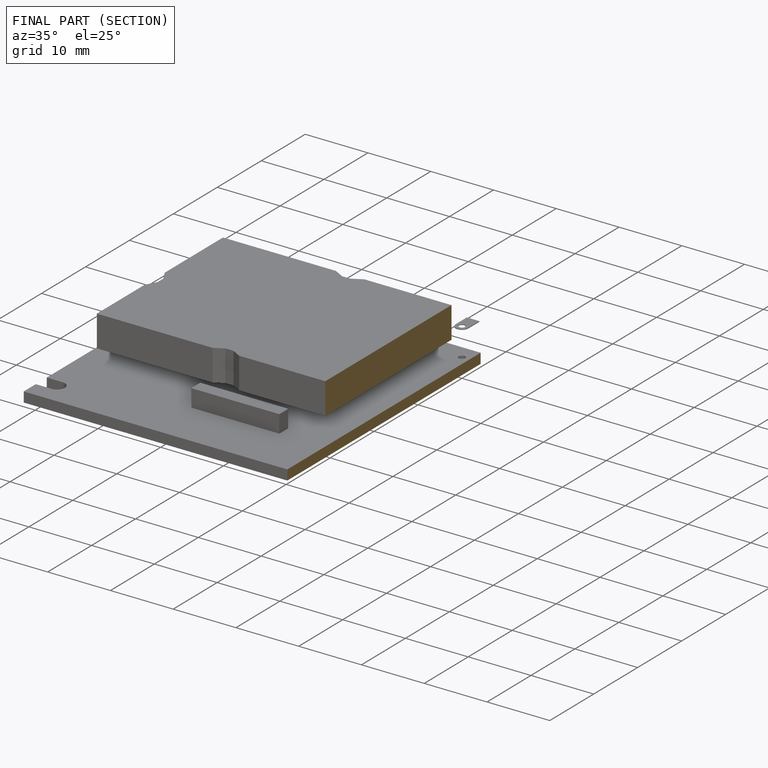
[diagram: finished part — half-section view (interior)]
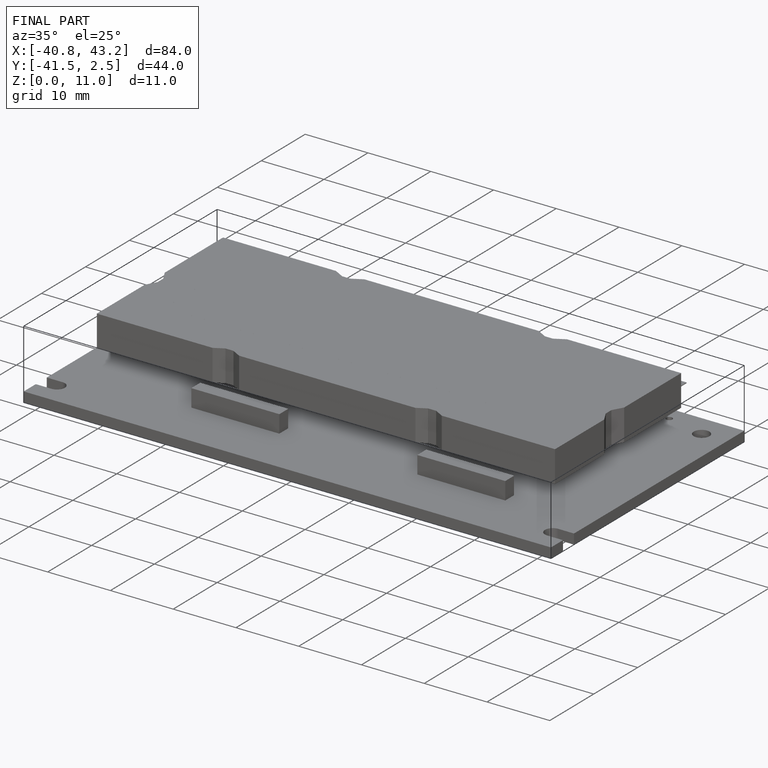
[diagram: finished part — iso view with bounding-box wireframe]
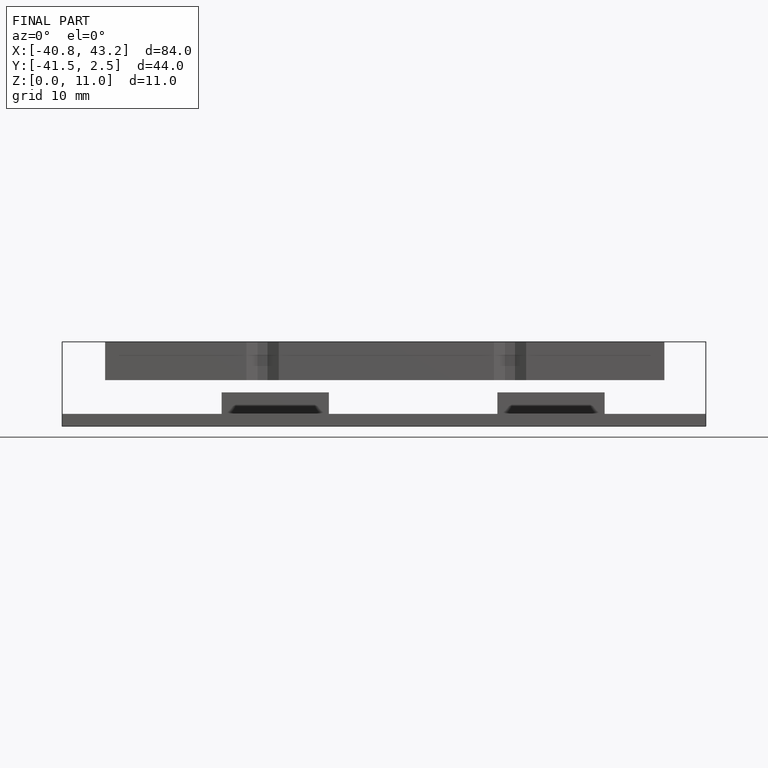
[diagram: finished part — front view with bounding-box wireframe]
